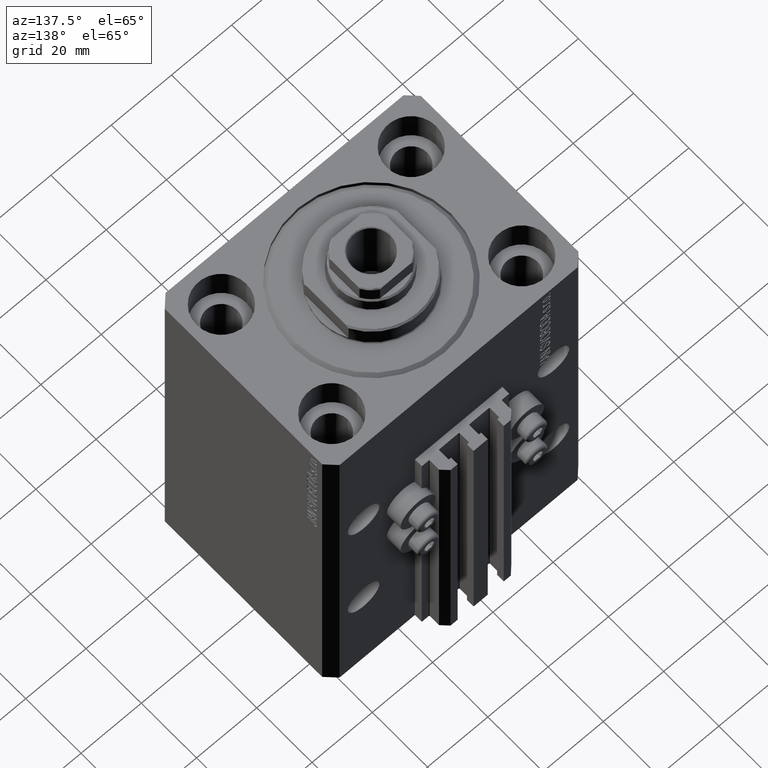
[diagram: clean part render]
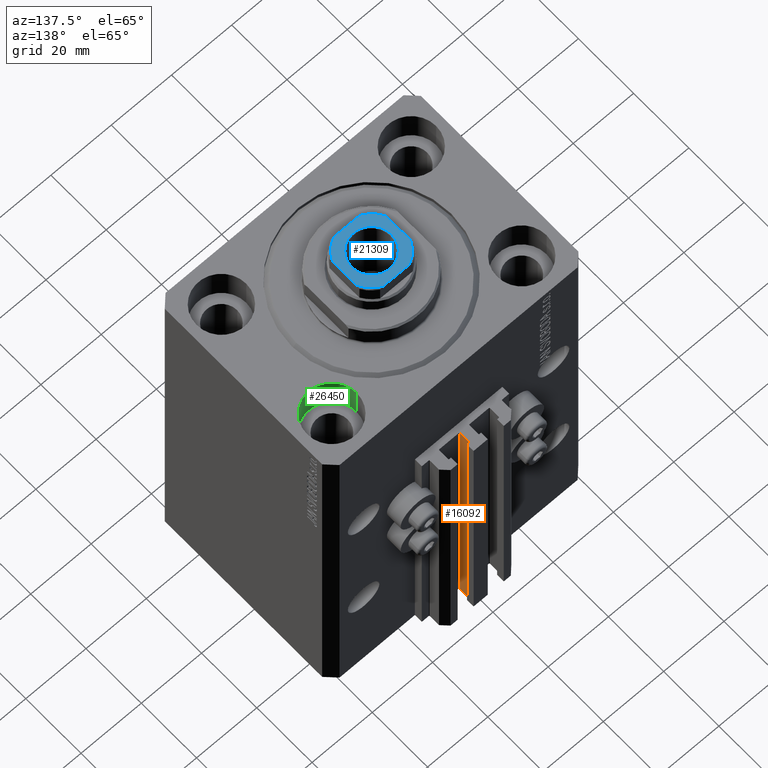
[diagram: same view with three faces highlighted in distinct colors, each labeled with its STEP entity id]
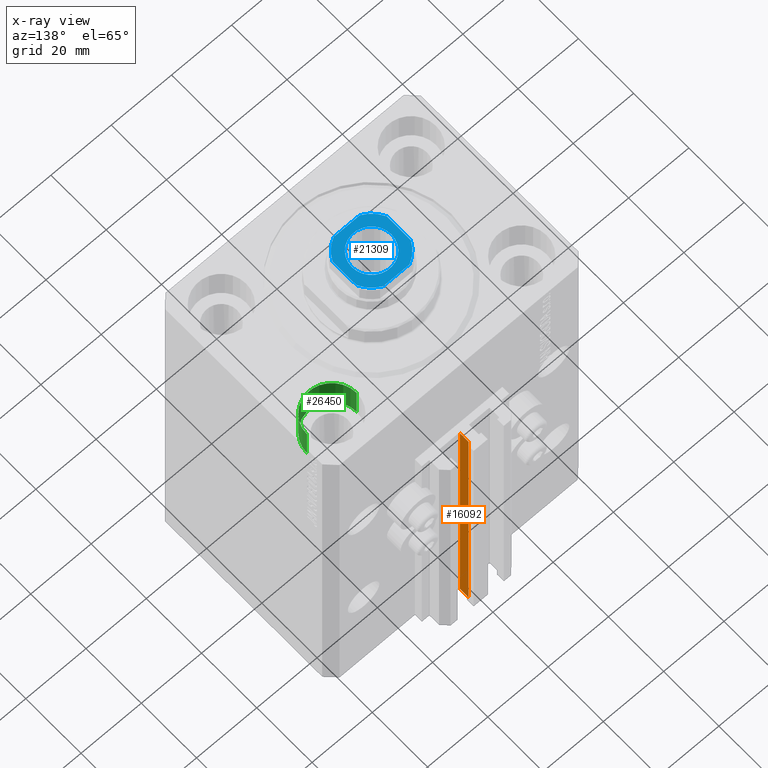
[diagram: x-ray of the same camera — body ghosted, the three highlighted faces saturated]
A machine part, auxiliary view with three faces highlighted in distinct colors.
The next image is the same camera in x-ray (body ghosted, the three faces saturated) — at least one of them is partly hidden behind the body in this view.
Their STEP definitions:

[orange] entity #16092 — the highlighted planar face has unit normal (1, 0, 0).
#746 = ORIENTED_EDGE ( 'NONE', *, *, #19876, .F. ) ;
#789 = CARTESIAN_POINT ( 'NONE',  ( 1.600000000000000533, 33.70000000000000284, -123.0000000000000000 ) ) ;
#1086 = PLANE ( 'NONE',  #20902 ) ;
#1789 = ORIENTED_EDGE ( 'NONE', *, *, #8171, .F. ) ;
#4004 = CARTESIAN_POINT ( 'NONE',  ( 1.600000000000001421, 33.70000000000000284, -33.00000000000000000 ) ) ;
#5672 = LINE ( 'NONE', #13450, #33568 ) ;
#7718 = CARTESIAN_POINT ( 'NONE',  ( 1.600000000000000533, 36.90000000000000568, -123.0000000000000000 ) ) ;
#8171 = EDGE_CURVE ( 'NONE', #47994, #40027, #5672, .T. ) ;
#9064 = ORIENTED_EDGE ( 'NONE', *, *, #42037, .T. ) ;
#10790 = CARTESIAN_POINT ( 'NONE',  ( 1.600000000000000533, 36.90000000000000568, -33.00000000000000000 ) ) ;
#11557 = FACE_OUTER_BOUND ( 'NONE', #12366, .T. ) ;
#12066 = CARTESIAN_POINT ( 'NONE',  ( 1.600000000000001421, 33.70000000000000284, -123.0000000000000000 ) ) ;
#12366 = EDGE_LOOP ( 'NONE', ( #1789, #746, #28269, #9064 ) ) ;
#13450 = CARTESIAN_POINT ( 'NONE',  ( 1.600000000000000533, 33.70000000000000284, -33.00000000000000000 ) ) ;
#15626 = DIRECTION ( 'NONE',  ( 0.000000000000000000, 1.000000000000000000, 0.000000000000000000 ) ) ;
#16092 = ADVANCED_FACE ( 'NONE', ( #11557 ), #1086, .T. ) ;
#19091 = DIRECTION ( 'NONE',  ( 0.000000000000000000, 0.000000000000000000, -1.000000000000000000 ) ) ;
#19876 = EDGE_CURVE ( 'NONE', #22594, #47994, #23481, .T. ) ;
#20083 = DIRECTION ( 'NONE',  ( 0.000000000000000000, 0.000000000000000000, 1.000000000000000000 ) ) ;
#20902 = AXIS2_PLACEMENT_3D ( 'NONE', #37094, #38050, #19091 ) ;
#21181 = CARTESIAN_POINT ( 'NONE',  ( 1.600000000000001421, 33.70000000000000284, -123.0000000000000000 ) ) ;
#22594 = VERTEX_POINT ( 'NONE', #21181 ) ;
#22929 = LINE ( 'NONE', #789, #47999 ) ;
#23481 = LINE ( 'NONE', #12066, #26425 ) ;
#25434 = CARTESIAN_POINT ( 'NONE',  ( 1.600000000000000533, 36.90000000000000568, -123.0000000000000000 ) ) ;
#25831 = VERTEX_POINT ( 'NONE', #25434 ) ;
#26425 = VECTOR ( 'NONE', #20083, 1000.000000000000000 ) ;
#28269 = ORIENTED_EDGE ( 'NONE', *, *, #41037, .T. ) ;
#28754 = DIRECTION ( 'NONE',  ( 0.000000000000000000, 1.000000000000000000, 0.000000000000000000 ) ) ;
#33568 = VECTOR ( 'NONE', #28754, 1000.000000000000000 ) ;
#37094 = CARTESIAN_POINT ( 'NONE',  ( 1.600000000000000533, 33.70000000000000284, -123.0000000000000000 ) ) ;
#38050 = DIRECTION ( 'NONE',  ( 1.000000000000000000, 0.000000000000000000, 0.000000000000000000 ) ) ;
#38452 = VECTOR ( 'NONE', #41046, 1000.000000000000000 ) ;
#40027 = VERTEX_POINT ( 'NONE', #10790 ) ;
#41037 = EDGE_CURVE ( 'NONE', #22594, #25831, #22929, .T. ) ;
#41046 = DIRECTION ( 'NONE',  ( 0.000000000000000000, 0.000000000000000000, 1.000000000000000000 ) ) ;
#42037 = EDGE_CURVE ( 'NONE', #25831, #40027, #44936, .T. ) ;
#44936 = LINE ( 'NONE', #7718, #38452 ) ;
#47994 = VERTEX_POINT ( 'NONE', #4004 ) ;
#47999 = VECTOR ( 'NONE', #15626, 1000.000000000000000 ) ;

[blue] entity #21309 — the highlighted planar face has unit normal (0, 0, 1).
#96 = VERTEX_POINT ( 'NONE', #13844 ) ;
#181 = EDGE_CURVE ( 'NONE', #18112, #96, #45071, .T. ) ;
#1051 = CARTESIAN_POINT ( 'NONE',  ( 9.000000000000001776, -4.358898943540675752, 128.5999999999999943 ) ) ;
#1719 = CIRCLE ( 'NONE', #13398, 6.549999999999971401 ) ;
#2527 = ORIENTED_EDGE ( 'NONE', *, *, #4371, .T. ) ;
#3265 = VECTOR ( 'NONE', #36523, 1000.000000000000000 ) ;
#3314 = VERTEX_POINT ( 'NONE', #38980 ) ;
#3819 = PLANE ( 'NONE',  #17977 ) ;
#4063 = FACE_BOUND ( 'NONE', #36047, .T. ) ;
#4283 = ORIENTED_EDGE ( 'NONE', *, *, #30096, .T. ) ;
#4305 = FACE_OUTER_BOUND ( 'NONE', #17643, .T. ) ;
#4371 = EDGE_CURVE ( 'NONE', #96, #10384, #18297, .T. ) ;
#5897 = AXIS2_PLACEMENT_3D ( 'NONE', #47995, #14669, #15136 ) ;
#5944 = CARTESIAN_POINT ( 'NONE',  ( 0.000000000000000000, 0.000000000000000000, 128.5999999999999943 ) ) ;
#6002 = VECTOR ( 'NONE', #18179, 1000.000000000000000 ) ;
#6976 = ORIENTED_EDGE ( 'NONE', *, *, #181, .T. ) ;
#7776 = CARTESIAN_POINT ( 'NONE',  ( 0.000000000000000000, 0.000000000000000000, 128.5999999999999943 ) ) ;
#8434 = CARTESIAN_POINT ( 'NONE',  ( 0.000000000000000000, 0.000000000000000000, 128.5999999999999943 ) ) ;
#8593 = LINE ( 'NONE', #41682, #37469 ) ;
#8669 = DIRECTION ( 'NONE',  ( 1.000000000000000000, 0.000000000000000000, 0.000000000000000000 ) ) ;
#8739 = DIRECTION ( 'NONE',  ( -0.000000000000000000, 0.000000000000000000, 1.000000000000000000 ) ) ;
#9903 = VERTEX_POINT ( 'NONE', #34976 ) ;
#10384 = VERTEX_POINT ( 'NONE', #14483 ) ;
#11187 = VERTEX_POINT ( 'NONE', #39564 ) ;
#11567 = EDGE_CURVE ( 'NONE', #14591, #43944, #19753, .T. ) ;
#11981 = AXIS2_PLACEMENT_3D ( 'NONE', #5944, #24896, #46558 ) ;
#13398 = AXIS2_PLACEMENT_3D ( 'NONE', #29108, #21574, #36876 ) ;
#13844 = CARTESIAN_POINT ( 'NONE',  ( 4.358898943540677529, 8.999999999999998224, 128.5999999999999943 ) ) ;
#14208 = ORIENTED_EDGE ( 'NONE', *, *, #11567, .T. ) ;
#14483 = CARTESIAN_POINT ( 'NONE',  ( -4.358898943540678417, 8.999999999999998224, 128.5999999999999943 ) ) ;
#14591 = VERTEX_POINT ( 'NONE', #29519 ) ;
#14669 = DIRECTION ( 'NONE',  ( -0.000000000000000000, 0.000000000000000000, 1.000000000000000000 ) ) ;
#15006 = CARTESIAN_POINT ( 'NONE',  ( 9.000000000000000000, 8.999999999999998224, 128.5999999999999943 ) ) ;
#15136 = DIRECTION ( 'NONE',  ( 1.000000000000000000, 0.000000000000000000, 0.000000000000000000 ) ) ;
#15930 = CARTESIAN_POINT ( 'NONE',  ( -8.999999999999998224, -9.000000000000001776, 128.5999999999999943 ) ) ;
#16380 = DIRECTION ( 'NONE',  ( 9.637352644315595243E-17, -1.000000000000000000, 0.000000000000000000 ) ) ;
#17643 = EDGE_LOOP ( 'NONE', ( #34350, #31219, #4283, #25419, #21217, #6976, #2527, #45677 ) ) ;
#17942 = CIRCLE ( 'NONE', #42765, 10.00000000000000000 ) ;
#17977 = AXIS2_PLACEMENT_3D ( 'NONE', #8434, #34200, #8669 ) ;
#18112 = VERTEX_POINT ( 'NONE', #20727 ) ;
#18179 = DIRECTION ( 'NONE',  ( -9.637352644315595243E-17, 1.000000000000000000, -0.000000000000000000 ) ) ;
#18297 = LINE ( 'NONE', #39055, #3265 ) ;
#19093 = AXIS2_PLACEMENT_3D ( 'NONE', #7776, #8739, #37685 ) ;
#19096 = LINE ( 'NONE', #15930, #19660 ) ;
#19660 = VECTOR ( 'NONE', #30525, 1000.000000000000000 ) ;
#19753 = CIRCLE ( 'NONE', #11981, 6.549999999999971401 ) ;
#20544 = EDGE_CURVE ( 'NONE', #10384, #36717, #17942, .T. ) ;
#20727 = CARTESIAN_POINT ( 'NONE',  ( 9.000000000000000000, 4.358898943540675752, 128.5999999999999943 ) ) ;
#21217 = ORIENTED_EDGE ( 'NONE', *, *, #38365, .T. ) ;
#21309 = ADVANCED_FACE ( 'NONE', ( #4063, #4305 ), #3819, .T. ) ;
#21574 = DIRECTION ( 'NONE',  ( 0.000000000000000000, -0.000000000000000000, -1.000000000000000000 ) ) ;
#23258 = CARTESIAN_POINT ( 'NONE',  ( 0.000000000000000000, 0.000000000000000000, 128.5999999999999943 ) ) ;
#23562 = EDGE_CURVE ( 'NONE', #43944, #14591, #1719, .T. ) ;
#24896 = DIRECTION ( 'NONE',  ( 0.000000000000000000, -0.000000000000000000, -1.000000000000000000 ) ) ;
#24926 = EDGE_CURVE ( 'NONE', #36717, #11187, #8593, .T. ) ;
#25419 = ORIENTED_EDGE ( 'NONE', *, *, #36087, .T. ) ;
#26038 = CARTESIAN_POINT ( 'NONE',  ( 6.549999999999971401, 0.000000000000000000, 128.5999999999999943 ) ) ;
#28123 = DIRECTION ( 'NONE',  ( 1.000000000000000000, 0.000000000000000000, 0.000000000000000000 ) ) ;
#29108 = CARTESIAN_POINT ( 'NONE',  ( 0.000000000000000000, 0.000000000000000000, 128.5999999999999943 ) ) ;
#29519 = CARTESIAN_POINT ( 'NONE',  ( -6.549999999999971401, 8.021436534415127749E-16, 128.5999999999999943 ) ) ;
#30096 = EDGE_CURVE ( 'NONE', #3314, #9903, #19096, .T. ) ;
#30525 = DIRECTION ( 'NONE',  ( 1.000000000000000000, 0.000000000000000000, 0.000000000000000000 ) ) ;
#31219 = ORIENTED_EDGE ( 'NONE', *, *, #46900, .T. ) ;
#32568 = VERTEX_POINT ( 'NONE', #1051 ) ;
#34200 = DIRECTION ( 'NONE',  ( -0.000000000000000000, 0.000000000000000000, 1.000000000000000000 ) ) ;
#34350 = ORIENTED_EDGE ( 'NONE', *, *, #24926, .T. ) ;
#34641 = CIRCLE ( 'NONE', #19093, 10.00000000000000000 ) ;
#34968 = AXIS2_PLACEMENT_3D ( 'NONE', #37381, #37145, #44933 ) ;
#34976 = CARTESIAN_POINT ( 'NONE',  ( 4.358898943540671311, -9.000000000000001776, 128.5999999999999943 ) ) ;
#35436 = CIRCLE ( 'NONE', #5897, 10.00000000000000000 ) ;
#36047 = EDGE_LOOP ( 'NONE', ( #38013, #14208 ) ) ;
#36087 = EDGE_CURVE ( 'NONE', #9903, #32568, #34641, .T. ) ;
#36523 = DIRECTION ( 'NONE',  ( -1.000000000000000000, -0.000000000000000000, -0.000000000000000000 ) ) ;
#36717 = VERTEX_POINT ( 'NONE', #43637 ) ;
#36876 = DIRECTION ( 'NONE',  ( 1.000000000000000000, 0.000000000000000000, 0.000000000000000000 ) ) ;
#37125 = LINE ( 'NONE', #15006, #6002 ) ;
#37145 = DIRECTION ( 'NONE',  ( -0.000000000000000000, 0.000000000000000000, 1.000000000000000000 ) ) ;
#37381 = CARTESIAN_POINT ( 'NONE',  ( 0.000000000000000000, 0.000000000000000000, 128.5999999999999943 ) ) ;
#37469 = VECTOR ( 'NONE', #16380, 1000.000000000000000 ) ;
#37685 = DIRECTION ( 'NONE',  ( 1.000000000000000000, 0.000000000000000000, 0.000000000000000000 ) ) ;
#38013 = ORIENTED_EDGE ( 'NONE', *, *, #23562, .T. ) ;
#38365 = EDGE_CURVE ( 'NONE', #32568, #18112, #37125, .T. ) ;
#38576 = DIRECTION ( 'NONE',  ( -0.000000000000000000, 0.000000000000000000, 1.000000000000000000 ) ) ;
#38980 = CARTESIAN_POINT ( 'NONE',  ( -4.358898943540671311, -9.000000000000001776, 128.5999999999999943 ) ) ;
#39055 = CARTESIAN_POINT ( 'NONE',  ( -9.000000000000000000, 8.999999999999998224, 128.5999999999999943 ) ) ;
#39564 = CARTESIAN_POINT ( 'NONE',  ( -9.000000000000000000, -4.358898943540675752, 128.5999999999999943 ) ) ;
#41682 = CARTESIAN_POINT ( 'NONE',  ( -9.000000000000000000, 8.999999999999998224, 128.5999999999999943 ) ) ;
#42765 = AXIS2_PLACEMENT_3D ( 'NONE', #23258, #38576, #28123 ) ;
#43637 = CARTESIAN_POINT ( 'NONE',  ( -9.000000000000000000, 4.358898943540674864, 128.5999999999999943 ) ) ;
#43944 = VERTEX_POINT ( 'NONE', #26038 ) ;
#44933 = DIRECTION ( 'NONE',  ( 1.000000000000000000, 0.000000000000000000, 0.000000000000000000 ) ) ;
#45071 = CIRCLE ( 'NONE', #34968, 10.00000000000000000 ) ;
#45677 = ORIENTED_EDGE ( 'NONE', *, *, #20544, .T. ) ;
#46558 = DIRECTION ( 'NONE',  ( 1.000000000000000000, 0.000000000000000000, 0.000000000000000000 ) ) ;
#46900 = EDGE_CURVE ( 'NONE', #11187, #3314, #35436, .T. ) ;
#47995 = CARTESIAN_POINT ( 'NONE',  ( 0.000000000000000000, 0.000000000000000000, 128.5999999999999943 ) ) ;

[green] entity #26450 — the highlighted cylindrical surface (edge-blend (fillet) strip) has radius 8.25 mm, axis along (0, 0, 1).
#721 = DIRECTION ( 'NONE',  ( 1.000000000000000000, 0.000000000000000000, 0.000000000000000000 ) ) ;
#4035 = VERTEX_POINT ( 'NONE', #39116 ) ;
#4818 = DIRECTION ( 'NONE',  ( -0.000000000000000000, -0.000000000000000000, 1.000000000000000000 ) ) ;
#5437 = CARTESIAN_POINT ( 'NONE',  ( 31.50000000000000000, 20.00000000000001066, 0.000000000000000000 ) ) ;
#5930 = DIRECTION ( 'NONE',  ( 0.000000000000000000, 0.000000000000000000, 1.000000000000000000 ) ) ;
#7203 = CIRCLE ( 'NONE', #42944, 8.249999999999992895 ) ;
#7822 = VECTOR ( 'NONE', #33845, 1000.000000000000000 ) ;
#8072 = LINE ( 'NONE', #19255, #7822 ) ;
#11238 = ORIENTED_EDGE ( 'NONE', *, *, #20790, .T. ) ;
#11441 = FACE_OUTER_BOUND ( 'NONE', #44653, .T. ) ;
#13644 = ORIENTED_EDGE ( 'NONE', *, *, #33927, .T. ) ;
#16715 = CYLINDRICAL_SURFACE ( 'NONE', #33650, 8.249999999999992895 ) ;
#17117 = VECTOR ( 'NONE', #4818, 1000.000000000000000 ) ;
#17950 = VERTEX_POINT ( 'NONE', #19274 ) ;
#19255 = CARTESIAN_POINT ( 'NONE',  ( 23.25000000000000355, 20.00000000000001066, -11.00000000000000000 ) ) ;
#19274 = CARTESIAN_POINT ( 'NONE',  ( 39.74999999999999289, 20.00000000000001066, 0.000000000000000000 ) ) ;
#19683 = EDGE_CURVE ( 'NONE', #37258, #17950, #23786, .T. ) ;
#19949 = CARTESIAN_POINT ( 'NONE',  ( 23.25000000000000355, 20.00000000000001066, 0.000000000000000000 ) ) ;
#20268 = DIRECTION ( 'NONE',  ( 1.000000000000000000, 0.000000000000000000, 0.000000000000000000 ) ) ;
#20759 = DIRECTION ( 'NONE',  ( 0.000000000000000000, 0.000000000000000000, 1.000000000000000000 ) ) ;
#20790 = EDGE_CURVE ( 'NONE', #4035, #44116, #8072, .T. ) ;
#21368 = AXIS2_PLACEMENT_3D ( 'NONE', #5437, #5930, #46791 ) ;
#23786 = LINE ( 'NONE', #38133, #17117 ) ;
#25065 = EDGE_CURVE ( 'NONE', #4035, #37258, #7203, .T. ) ;
#26450 = ADVANCED_FACE ( 'NONE', ( #11441 ), #16715, .F. ) ;
#29137 = CIRCLE ( 'NONE', #21368, 8.249999999999992895 ) ;
#30825 = ORIENTED_EDGE ( 'NONE', *, *, #19683, .F. ) ;
#30926 = ORIENTED_EDGE ( 'NONE', *, *, #25065, .F. ) ;
#33650 = AXIS2_PLACEMENT_3D ( 'NONE', #34033, #44993, #721 ) ;
#33845 = DIRECTION ( 'NONE',  ( -0.000000000000000000, -0.000000000000000000, 1.000000000000000000 ) ) ;
#33927 = EDGE_CURVE ( 'NONE', #44116, #17950, #29137, .T. ) ;
#34033 = CARTESIAN_POINT ( 'NONE',  ( 31.50000000000000000, 20.00000000000001066, -11.00000000000000000 ) ) ;
#37258 = VERTEX_POINT ( 'NONE', #42749 ) ;
#38133 = CARTESIAN_POINT ( 'NONE',  ( 39.74999999999999289, 20.00000000000001066, -11.00000000000000000 ) ) ;
#39116 = CARTESIAN_POINT ( 'NONE',  ( 23.25000000000000355, 20.00000000000001066, -11.00000000000000000 ) ) ;
#42749 = CARTESIAN_POINT ( 'NONE',  ( 39.74999999999999289, 20.00000000000001066, -11.00000000000000000 ) ) ;
#42944 = AXIS2_PLACEMENT_3D ( 'NONE', #46054, #20759, #20268 ) ;
#44116 = VERTEX_POINT ( 'NONE', #19949 ) ;
#44653 = EDGE_LOOP ( 'NONE', ( #30926, #11238, #13644, #30825 ) ) ;
#44993 = DIRECTION ( 'NONE',  ( -0.000000000000000000, -0.000000000000000000, 1.000000000000000000 ) ) ;
#46054 = CARTESIAN_POINT ( 'NONE',  ( 31.50000000000000000, 20.00000000000001066, -11.00000000000000000 ) ) ;
#46791 = DIRECTION ( 'NONE',  ( 1.000000000000000000, 0.000000000000000000, 0.000000000000000000 ) ) ;